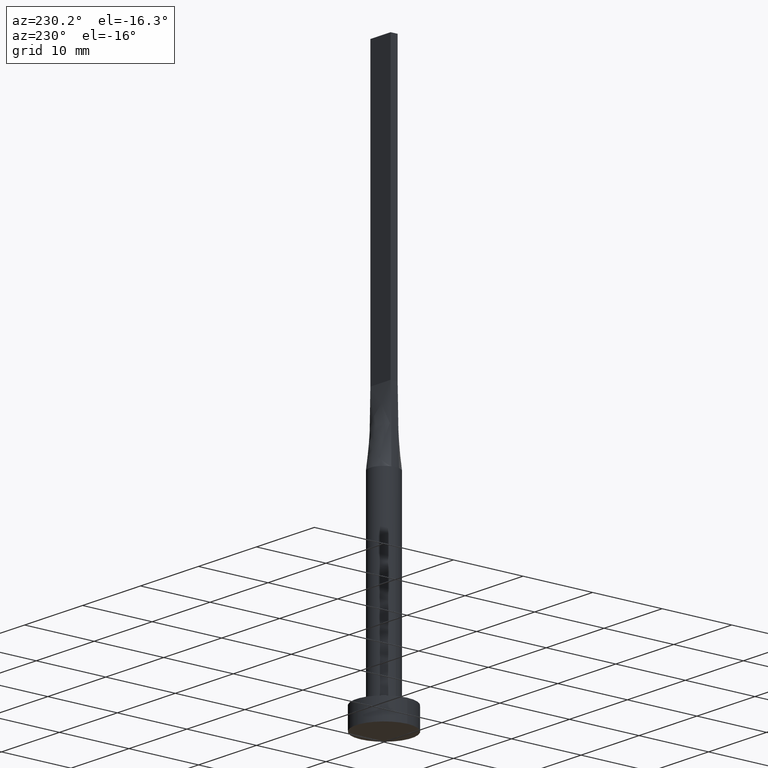
[diagram: clean part render]
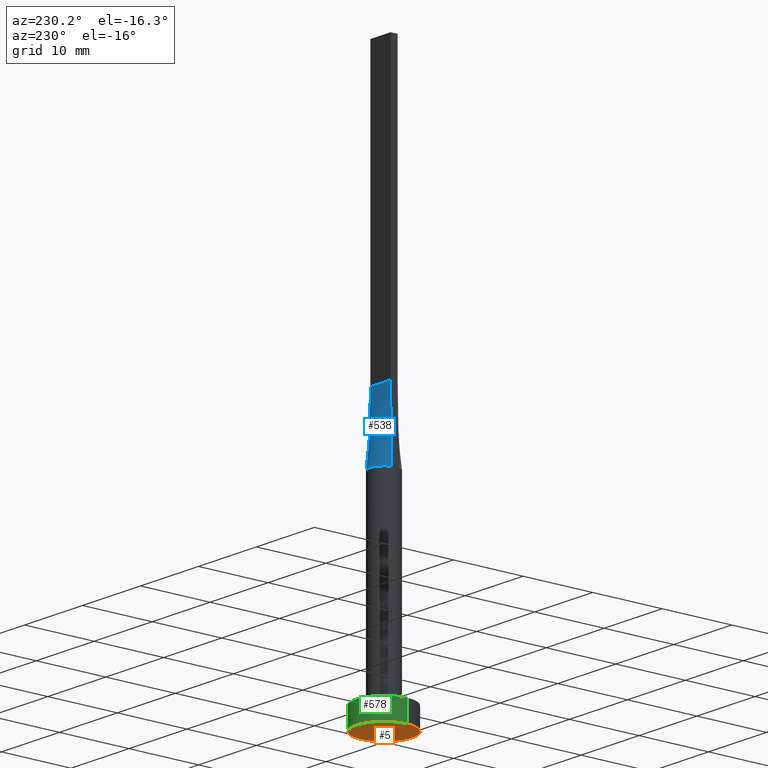
[diagram: same view with three faces highlighted in distinct colors, each labeled with its STEP entity id]
A machine part, auxiliary view with three faces highlighted in distinct colors.
Their STEP definitions:

[orange] entity #5 — the highlighted planar face has unit normal (0, 0, 1).
#5 = ADVANCED_FACE ( 'NONE', ( #258 ), #397, .F. ) ;
#17 = CIRCLE ( 'NONE', #454, 4.000000000000000000 ) ;
#51 = AXIS2_PLACEMENT_3D ( 'NONE', #70, #302, #442 ) ;
#66 = ORIENTED_EDGE ( 'NONE', *, *, #120, .F. ) ;
#70 = CARTESIAN_POINT ( 'NONE',  ( 0.000000000000000000, 0.000000000000000000, 0.000000000000000000 ) ) ;
#89 = ORIENTED_EDGE ( 'NONE', *, *, #518, .F. ) ;
#107 = VERTEX_POINT ( 'NONE', #262 ) ;
#120 = EDGE_CURVE ( 'NONE', #439, #107, #542, .T. ) ;
#207 = EDGE_LOOP ( 'NONE', ( #89, #66 ) ) ;
#229 = CARTESIAN_POINT ( 'NONE',  ( 0.000000000000000000, 0.000000000000000000, 0.000000000000000000 ) ) ;
#258 = FACE_OUTER_BOUND ( 'NONE', #207, .T. ) ;
#262 = CARTESIAN_POINT ( 'NONE',  ( -4.000000000000000000, 0.000000000000000000, 0.000000000000000000 ) ) ;
#302 = DIRECTION ( 'NONE',  ( 0.000000000000000000, 0.000000000000000000, 1.000000000000000000 ) ) ;
#397 = PLANE ( 'NONE',  #51 ) ;
#437 = AXIS2_PLACEMENT_3D ( 'NONE', #472, #568, #480 ) ;
#439 = VERTEX_POINT ( 'NONE', #529 ) ;
#442 = DIRECTION ( 'NONE',  ( 1.000000000000000000, 0.000000000000000000, -0.000000000000000000 ) ) ;
#454 = AXIS2_PLACEMENT_3D ( 'NONE', #229, #580, #531 ) ;
#472 = CARTESIAN_POINT ( 'NONE',  ( 0.000000000000000000, 0.000000000000000000, 0.000000000000000000 ) ) ;
#480 = DIRECTION ( 'NONE',  ( 1.000000000000000000, 0.000000000000000000, 0.000000000000000000 ) ) ;
#518 = EDGE_CURVE ( 'NONE', #107, #439, #17, .T. ) ;
#529 = CARTESIAN_POINT ( 'NONE',  ( 4.000000000000000000, 4.898587196589412829E-16, 0.000000000000000000 ) ) ;
#531 = DIRECTION ( 'NONE',  ( 1.000000000000000000, 0.000000000000000000, 0.000000000000000000 ) ) ;
#542 = CIRCLE ( 'NONE', #437, 4.000000000000000000 ) ;
#568 = DIRECTION ( 'NONE',  ( 0.000000000000000000, 0.000000000000000000, 1.000000000000000000 ) ) ;
#580 = DIRECTION ( 'NONE',  ( 0.000000000000000000, 0.000000000000000000, 1.000000000000000000 ) ) ;

[blue] entity #538 — the highlighted face is a freeform B-spline surface patch.
#3 = CARTESIAN_POINT ( 'NONE',  ( 1.616149014776643522, 1.193458220519943103, 30.00000000000000000 ) ) ;
#4 = CARTESIAN_POINT ( 'NONE',  ( -1.812374357931688884, 0.8669367617086288780, 30.00000000000001066 ) ) ;
#7 = CARTESIAN_POINT ( 'NONE',  ( 1.155438169178558461, 1.647245198242353714, 29.99999999999999645 ) ) ;
#8 = ORIENTED_EDGE ( 'NONE', *, *, #163, .F. ) ;
#20 = CARTESIAN_POINT ( 'NONE',  ( -1.616149014776643966, 1.193458220519943103, 30.00000000000000711 ) ) ;
#36 = ORIENTED_EDGE ( 'NONE', *, *, #303, .F. ) ;
#43 = B_SPLINE_SURFACE_WITH_KNOTS ( 'NONE', 3, 1, ( 
 ( #487, #82 ),
 ( #174, #87 ),
 ( #226, #398 ),
 ( #3, #263 ),
 ( #356, #355 ),
 ( #7, #312 ),
 ( #267, #446 ),
 ( #536, #399 ),
 ( #448, #44 ),
 ( #223, #402 ),
 ( #180, #416 ),
 ( #320, #411 ),
 ( #97, #527 ),
 ( #129, #304 ),
 ( #443, #572 ),
 ( #4, #483 ),
 ( #78, #440 ),
 ( #161, #343 ) ),
 .UNSPECIFIED., .F., .F., .F.,
 ( 4, 2, 2, 2, 2, 2, 2, 2, 4 ),
 ( 2, 2 ),
 ( 0.000000000000000000, 0.1249999999999999722, 0.2500000000000000000, 0.3750000000000000000, 0.5000000000000001110, 0.6250000000000001110, 0.7500000000000000000, 0.8750000000000000000, 1.000000000000000000 ),
 ( 0.000000000000000000, 1.000000000000000000 ),
 .UNSPECIFIED. ) ;
#44 = CARTESIAN_POINT ( 'NONE',  ( 0.1458333333333326209, 0.5000000000000002220, 40.00000000000000000 ) ) ;
#46 = FACE_OUTER_BOUND ( 'NONE', #364, .T. ) ;
#53 = LINE ( 'NONE', #93, #407 ) ;
#57 = VERTEX_POINT ( 'NONE', #482 ) ;
#59 = CARTESIAN_POINT ( 'NONE',  ( 1.879022738048942154, 0.7035303061092218480, 30.00000000000000355 ) ) ;
#71 = CARTESIAN_POINT ( 'NONE',  ( -1.836523947640823051, 0.5247211278973779036, 35.00000000000000000 ) ) ;
#78 = CARTESIAN_POINT ( 'NONE',  ( -1.879022738048941710, 0.7035303061092221810, 30.00000000000000000 ) ) ;
#80 = CARTESIAN_POINT ( 'NONE',  ( -1.923179810488875541, 0.5494804890868837388, 30.00000000000000000 ) ) ;
#82 = CARTESIAN_POINT ( 'NONE',  ( 1.749999999999998890, 0.5000000000000002220, 40.00000000000000000 ) ) ;
#87 = CARTESIAN_POINT ( 'NONE',  ( 1.604166666666665630, 0.5000000000000002220, 39.99999999999999289 ) ) ;
#93 = CARTESIAN_POINT ( 'NONE',  ( 1.836523947640823051, 0.5247211278973783477, 35.00000000000000000 ) ) ;
#97 = CARTESIAN_POINT ( 'NONE',  ( -1.155438169178558017, 1.647245198242353936, 30.00000000000000711 ) ) ;
#98 = ORIENTED_EDGE ( 'NONE', *, *, #457, .T. ) ;
#99 = CARTESIAN_POINT ( 'NONE',  ( 0.9545234919502409987, 1.774214358793529955, 30.00000000000000355 ) ) ;
#108 = B_SPLINE_CURVE_WITH_KNOTS ( 'NONE', 3,
 ( #552, #59, #458, #326, #374, #145, #99, #235, #415, #196, #381, #559, #238, #418, #20, #199, #152, #556 ),
 .UNSPECIFIED., .F., .F.,
 ( 4, 2, 2, 2, 2, 2, 2, 2, 4 ),
 ( 0.000000000000000000, 0.1249999999999999722, 0.2500000000000000000, 0.3750000000000000000, 0.5000000000000001110, 0.6250000000000001110, 0.7500000000000000000, 0.8750000000000000000, 1.000000000000000000 ),
 .UNSPECIFIED. ) ;
#129 = CARTESIAN_POINT ( 'NONE',  ( -1.486037034853319616, 1.356520562679218056, 30.00000000000000355 ) ) ;
#138 = LINE ( 'NONE', #71, #473 ) ;
#145 = CARTESIAN_POINT ( 'NONE',  ( 1.155438169178558461, 1.647245198242353714, 29.99999999999999645 ) ) ;
#147 = VERTEX_POINT ( 'NONE', #309 ) ;
#152 = CARTESIAN_POINT ( 'NONE',  ( -1.879022738048941710, 0.7035303061092221810, 30.00000000000000000 ) ) ;
#157 = ORIENTED_EDGE ( 'NONE', *, *, #260, .T. ) ;
#161 = CARTESIAN_POINT ( 'NONE',  ( -1.923047895281646325, 0.5494422557947555852, 30.00000000000000000 ) ) ;
#163 = EDGE_CURVE ( 'NONE', #147, #57, #261, .T. ) ;
#174 = CARTESIAN_POINT ( 'NONE',  ( 1.879022738048942154, 0.7035303061092218480, 30.00000000000000355 ) ) ;
#175 = VECTOR ( 'NONE', #264, 1000.000000000000000 ) ;
#180 = CARTESIAN_POINT ( 'NONE',  ( -0.5022746254375797248, 1.951069421695588169, 29.99999999999999645 ) ) ;
#196 = CARTESIAN_POINT ( 'NONE',  ( -0.2514338042514528415, 1.999999999999999556, 30.00000000000001066 ) ) ;
#199 = CARTESIAN_POINT ( 'NONE',  ( -1.812374357931688884, 0.8669367617086288780, 30.00000000000001066 ) ) ;
#219 = CARTESIAN_POINT ( 'NONE',  ( -1.749999999999999778, 0.5000000000000002220, 40.00000000000000000 ) ) ;
#221 = VERTEX_POINT ( 'NONE', #80 ) ;
#223 = CARTESIAN_POINT ( 'NONE',  ( -0.2514338042514528415, 1.999999999999999556, 30.00000000000001066 ) ) ;
#226 = CARTESIAN_POINT ( 'NONE',  ( 1.812374357931689328, 0.8669367617086293221, 30.00000000000000355 ) ) ;
#232 = DIRECTION ( 'NONE',  ( -0.01730198768854152372, -0.004943425053869007768, 0.9998380887777591486 ) ) ;
#235 = CARTESIAN_POINT ( 'NONE',  ( 0.5022746254375803909, 1.951069421695587947, 29.99999999999999645 ) ) ;
#238 = CARTESIAN_POINT ( 'NONE',  ( -1.155438169178558017, 1.647245198242353936, 30.00000000000000711 ) ) ;
#260 = EDGE_CURVE ( 'NONE', #221, #57, #138, .T. ) ;
#261 = LINE ( 'NONE', #219, #175 ) ;
#263 = CARTESIAN_POINT ( 'NONE',  ( 1.166666666666665630, 0.5000000000000002220, 39.99999999999999289 ) ) ;
#264 = DIRECTION ( 'NONE',  ( -1.000000000000000000, -0.000000000000000000, -0.000000000000000000 ) ) ;
#267 = CARTESIAN_POINT ( 'NONE',  ( 0.9545234919502409987, 1.774214358793529955, 30.00000000000000355 ) ) ;
#303 = EDGE_CURVE ( 'NONE', #495, #147, #53, .T. ) ;
#304 = CARTESIAN_POINT ( 'NONE',  ( -1.020833333333333481, 0.5000000000000002220, 39.99999999999999289 ) ) ;
#309 = CARTESIAN_POINT ( 'NONE',  ( 1.749999999999999778, 0.5000000000000002220, 40.00000000000000000 ) ) ;
#312 = CARTESIAN_POINT ( 'NONE',  ( 0.7291666666666657415, 0.5000000000000002220, 39.99999999999999289 ) ) ;
#320 = CARTESIAN_POINT ( 'NONE',  ( -0.9545234919502401105, 1.774214358793530177, 30.00000000000000355 ) ) ;
#326 = CARTESIAN_POINT ( 'NONE',  ( 1.616149014776643522, 1.193458220519943103, 30.00000000000000000 ) ) ;
#343 = CARTESIAN_POINT ( 'NONE',  ( -1.749999999999999778, 0.5000000000000002220, 40.00000000000000000 ) ) ;
#355 = CARTESIAN_POINT ( 'NONE',  ( 1.020833333333332371, 0.5000000000000002220, 39.99999999999999289 ) ) ;
#356 = CARTESIAN_POINT ( 'NONE',  ( 1.486037034853319616, 1.356520562679217834, 29.99999999999999289 ) ) ;
#364 = EDGE_LOOP ( 'NONE', ( #98, #157, #8, #36 ) ) ;
#367 = CARTESIAN_POINT ( 'NONE',  ( 1.923154993136894975, 0.5494733089275741778, 30.00000000000000000 ) ) ;
#374 = CARTESIAN_POINT ( 'NONE',  ( 1.486037034853319616, 1.356520562679217834, 29.99999999999999289 ) ) ;
#381 = CARTESIAN_POINT ( 'NONE',  ( -0.5022746254375797248, 1.951069421695588169, 29.99999999999999645 ) ) ;
#398 = CARTESIAN_POINT ( 'NONE',  ( 1.458333333333332371, 0.5000000000000002220, 39.99999999999999289 ) ) ;
#399 = CARTESIAN_POINT ( 'NONE',  ( 0.2916666666666658525, 0.5000000000000002220, 39.99999999999999289 ) ) ;
#402 = CARTESIAN_POINT ( 'NONE',  ( -0.1458333333333340365, 0.5000000000000002220, 39.99999999999999289 ) ) ;
#407 = VECTOR ( 'NONE', #232, 1000.000000000000227 ) ;
#411 = CARTESIAN_POINT ( 'NONE',  ( -0.5833333333333339255, 0.5000000000000002220, 39.99999999999999289 ) ) ;
#415 = CARTESIAN_POINT ( 'NONE',  ( 0.2514338042514535632, 1.999999999999999556, 30.00000000000000355 ) ) ;
#416 = CARTESIAN_POINT ( 'NONE',  ( -0.2916666666666674623, 0.5000000000000002220, 39.99999999999999289 ) ) ;
#418 = CARTESIAN_POINT ( 'NONE',  ( -1.486037034853319616, 1.356520562679218056, 30.00000000000000355 ) ) ;
#440 = CARTESIAN_POINT ( 'NONE',  ( -1.604166666666666519, 0.5000000000000002220, 39.99999999999999289 ) ) ;
#443 = CARTESIAN_POINT ( 'NONE',  ( -1.616149014776643966, 1.193458220519943103, 30.00000000000000711 ) ) ;
#446 = CARTESIAN_POINT ( 'NONE',  ( 0.5833333333333323711, 0.5000000000000002220, 39.99999999999999289 ) ) ;
#448 = CARTESIAN_POINT ( 'NONE',  ( 0.2514338042514535632, 1.999999999999999556, 30.00000000000000355 ) ) ;
#457 = EDGE_CURVE ( 'NONE', #495, #221, #108, .T. ) ;
#458 = CARTESIAN_POINT ( 'NONE',  ( 1.812374357931689328, 0.8669367617086293221, 30.00000000000000355 ) ) ;
#473 = VECTOR ( 'NONE', #515, 1000.000000000000227 ) ;
#482 = CARTESIAN_POINT ( 'NONE',  ( -1.749999999999999778, 0.5000000000000002220, 40.00000000000000000 ) ) ;
#483 = CARTESIAN_POINT ( 'NONE',  ( -1.458333333333333259, 0.5000000000000002220, 39.99999999999999289 ) ) ;
#487 = CARTESIAN_POINT ( 'NONE',  ( 1.923047895281646325, 0.5494422557947561403, 30.00000000000000000 ) ) ;
#495 = VERTEX_POINT ( 'NONE', #367 ) ;
#515 = DIRECTION ( 'NONE',  ( 0.01730198768854152372, -0.004943425053868931440, 0.9998380887777591486 ) ) ;
#527 = CARTESIAN_POINT ( 'NONE',  ( -0.7291666666666671848, 0.5000000000000002220, 39.99999999999999289 ) ) ;
#536 = CARTESIAN_POINT ( 'NONE',  ( 0.5022746254375803909, 1.951069421695587947, 29.99999999999999645 ) ) ;
#538 = ADVANCED_FACE ( 'NONE', ( #46 ), #43, .T. ) ;
#552 = CARTESIAN_POINT ( 'NONE',  ( 1.923154993136894975, 0.5494733089275741778, 30.00000000000000000 ) ) ;
#556 = CARTESIAN_POINT ( 'NONE',  ( -1.923179810488875541, 0.5494804890868837388, 30.00000000000000000 ) ) ;
#559 = CARTESIAN_POINT ( 'NONE',  ( -0.9545234919502401105, 1.774214358793530177, 30.00000000000000355 ) ) ;
#572 = CARTESIAN_POINT ( 'NONE',  ( -1.166666666666666519, 0.5000000000000002220, 39.99999999999999289 ) ) ;

[green] entity #578 — the highlighted cylindrical surface (edge-blend (fillet) strip) has radius 4 mm, axis along (-0, -0, -1).
#19 = EDGE_CURVE ( 'NONE', #165, #439, #571, .T. ) ;
#27 = AXIS2_PLACEMENT_3D ( 'NONE', #395, #166, #479 ) ;
#28 = DIRECTION ( 'NONE',  ( 1.000000000000000000, 0.000000000000000000, 0.000000000000000000 ) ) ;
#32 = LINE ( 'NONE', #296, #512 ) ;
#37 = CYLINDRICAL_SURFACE ( 'NONE', #27, 4.000000000000000000 ) ;
#69 = CIRCLE ( 'NONE', #484, 4.000000000000000000 ) ;
#106 = DIRECTION ( 'NONE',  ( 0.000000000000000000, 0.000000000000000000, 1.000000000000000000 ) ) ;
#107 = VERTEX_POINT ( 'NONE', #262 ) ;
#119 = DIRECTION ( 'NONE',  ( -0.000000000000000000, -0.000000000000000000, -1.000000000000000000 ) ) ;
#120 = EDGE_CURVE ( 'NONE', #439, #107, #542, .T. ) ;
#125 = CARTESIAN_POINT ( 'NONE',  ( 4.000000000000000000, 4.898587196589412829E-16, 3.000000000000000000 ) ) ;
#165 = VERTEX_POINT ( 'NONE', #125 ) ;
#166 = DIRECTION ( 'NONE',  ( -0.000000000000000000, -0.000000000000000000, -1.000000000000000000 ) ) ;
#204 = ORIENTED_EDGE ( 'NONE', *, *, #120, .T. ) ;
#231 = ORIENTED_EDGE ( 'NONE', *, *, #19, .T. ) ;
#233 = EDGE_CURVE ( 'NONE', #165, #383, #69, .T. ) ;
#254 = CARTESIAN_POINT ( 'NONE',  ( 4.000000000000000000, 4.898587196589412829E-16, 3.000000000000000000 ) ) ;
#255 = FACE_OUTER_BOUND ( 'NONE', #553, .T. ) ;
#262 = CARTESIAN_POINT ( 'NONE',  ( -4.000000000000000000, 0.000000000000000000, 0.000000000000000000 ) ) ;
#296 = CARTESIAN_POINT ( 'NONE',  ( -4.000000000000000000, 0.000000000000000000, 3.000000000000000000 ) ) ;
#383 = VERTEX_POINT ( 'NONE', #435 ) ;
#390 = EDGE_CURVE ( 'NONE', #383, #107, #32, .T. ) ;
#395 = CARTESIAN_POINT ( 'NONE',  ( 0.000000000000000000, 0.000000000000000000, 3.000000000000000000 ) ) ;
#435 = CARTESIAN_POINT ( 'NONE',  ( -4.000000000000000000, 0.000000000000000000, 3.000000000000000000 ) ) ;
#437 = AXIS2_PLACEMENT_3D ( 'NONE', #472, #568, #480 ) ;
#439 = VERTEX_POINT ( 'NONE', #529 ) ;
#472 = CARTESIAN_POINT ( 'NONE',  ( 0.000000000000000000, 0.000000000000000000, 0.000000000000000000 ) ) ;
#479 = DIRECTION ( 'NONE',  ( -1.000000000000000000, 0.000000000000000000, 0.000000000000000000 ) ) ;
#480 = DIRECTION ( 'NONE',  ( 1.000000000000000000, 0.000000000000000000, 0.000000000000000000 ) ) ;
#484 = AXIS2_PLACEMENT_3D ( 'NONE', #517, #106, #28 ) ;
#501 = ORIENTED_EDGE ( 'NONE', *, *, #390, .F. ) ;
#512 = VECTOR ( 'NONE', #119, 1000.000000000000000 ) ;
#516 = DIRECTION ( 'NONE',  ( -0.000000000000000000, -0.000000000000000000, -1.000000000000000000 ) ) ;
#517 = CARTESIAN_POINT ( 'NONE',  ( 0.000000000000000000, 0.000000000000000000, 3.000000000000000000 ) ) ;
#521 = VECTOR ( 'NONE', #516, 1000.000000000000000 ) ;
#529 = CARTESIAN_POINT ( 'NONE',  ( 4.000000000000000000, 4.898587196589412829E-16, 0.000000000000000000 ) ) ;
#542 = CIRCLE ( 'NONE', #437, 4.000000000000000000 ) ;
#553 = EDGE_LOOP ( 'NONE', ( #579, #231, #204, #501 ) ) ;
#568 = DIRECTION ( 'NONE',  ( 0.000000000000000000, 0.000000000000000000, 1.000000000000000000 ) ) ;
#571 = LINE ( 'NONE', #254, #521 ) ;
#578 = ADVANCED_FACE ( 'NONE', ( #255 ), #37, .T. ) ;
#579 = ORIENTED_EDGE ( 'NONE', *, *, #233, .F. ) ;